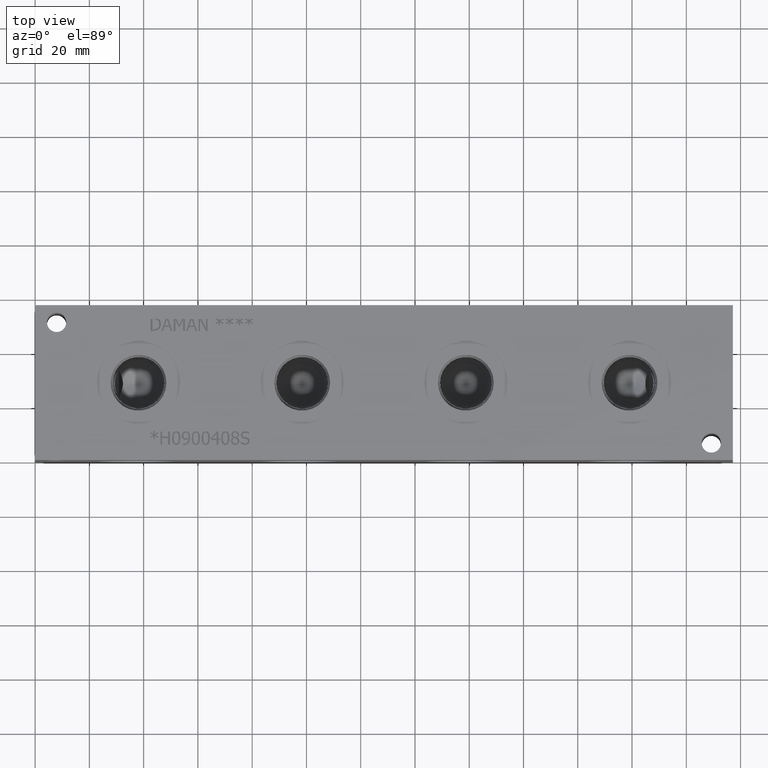
[diagram: clean part render]
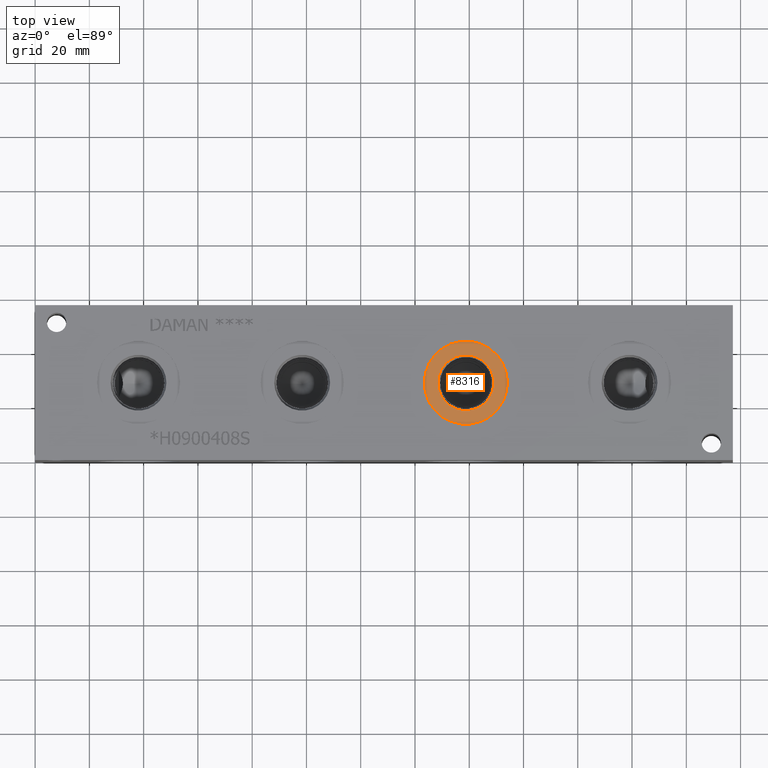
[diagram: same view with one face highlighted and labeled with its STEP entity id]
A machine part, top view. The second image highlights one B-rep face of the part: STEP entity #8316.
In plain terms, the highlighted planar face has unit normal (0, 0, -1).
Its self-contained STEP definition (entity closure, byte-faithful):
#245=CIRCLE('',#8792,15.3162);
#246=CIRCLE('',#8793,15.3162);
#247=CIRCLE('',#8795,10.2997);
#248=CIRCLE('',#8796,10.2997);
#341=FACE_BOUND('',#1457,.T.);
#578=PLANE('',#8794);
#980=FACE_OUTER_BOUND('',#1456,.T.);
#1456=EDGE_LOOP('',(#7314,#7315));
#1457=EDGE_LOOP('',(#7316,#7317));
#3956=VERTEX_POINT('',#14389);
#3957=VERTEX_POINT('',#14391);
#3958=VERTEX_POINT('',#14395);
#3959=VERTEX_POINT('',#14396);
#5098=EDGE_CURVE('',#3956,#3957,#245,.T.);
#5099=EDGE_CURVE('',#3957,#3956,#246,.T.);
#5100=EDGE_CURVE('',#3958,#3959,#247,.T.);
#5101=EDGE_CURVE('',#3959,#3958,#248,.T.);
#7314=ORIENTED_EDGE('',*,*,#5099,.F.);
#7315=ORIENTED_EDGE('',*,*,#5098,.F.);
#7316=ORIENTED_EDGE('',*,*,#5100,.T.);
#7317=ORIENTED_EDGE('',*,*,#5101,.T.);
#8316=ADVANCED_FACE('',(#980,#341),#578,.F.);
#8792=AXIS2_PLACEMENT_3D('',#14392,#10427,#10428);
#8793=AXIS2_PLACEMENT_3D('',#14393,#10429,#10430);
#8794=AXIS2_PLACEMENT_3D('',#14394,#10431,#10432);
#8795=AXIS2_PLACEMENT_3D('',#14397,#10433,#10434);
#8796=AXIS2_PLACEMENT_3D('',#14398,#10435,#10436);
#10427=DIRECTION('center_axis',(0.,0.,-1.));
#10428=DIRECTION('ref_axis',(1.,0.,0.));
#10429=DIRECTION('center_axis',(0.,0.,-1.));
#10430=DIRECTION('ref_axis',(1.,0.,0.));
#10431=DIRECTION('center_axis',(0.,0.,-1.));
#10432=DIRECTION('ref_axis',(-1.,0.,0.));
#10433=DIRECTION('center_axis',(0.,0.,-1.));
#10434=DIRECTION('ref_axis',(1.,0.,0.));
#10435=DIRECTION('center_axis',(0.,0.,-1.));
#10436=DIRECTION('ref_axis',(1.,0.,0.));
#14389=CARTESIAN_POINT('',(143.4338,28.575,56.3626));
#14391=CARTESIAN_POINT('',(174.0662,28.575,56.3626));
#14392=CARTESIAN_POINT('Origin',(158.75,28.575,56.3626));
#14393=CARTESIAN_POINT('Origin',(158.75,28.575,56.3626));
#14394=CARTESIAN_POINT('Origin',(169.0497,28.575,56.3626));
#14395=CARTESIAN_POINT('',(169.0497,28.575,56.3626));
#14396=CARTESIAN_POINT('',(148.4503,28.575,56.3626));
#14397=CARTESIAN_POINT('Origin',(158.75,28.575,56.3626));
#14398=CARTESIAN_POINT('Origin',(158.75,28.575,56.3626));